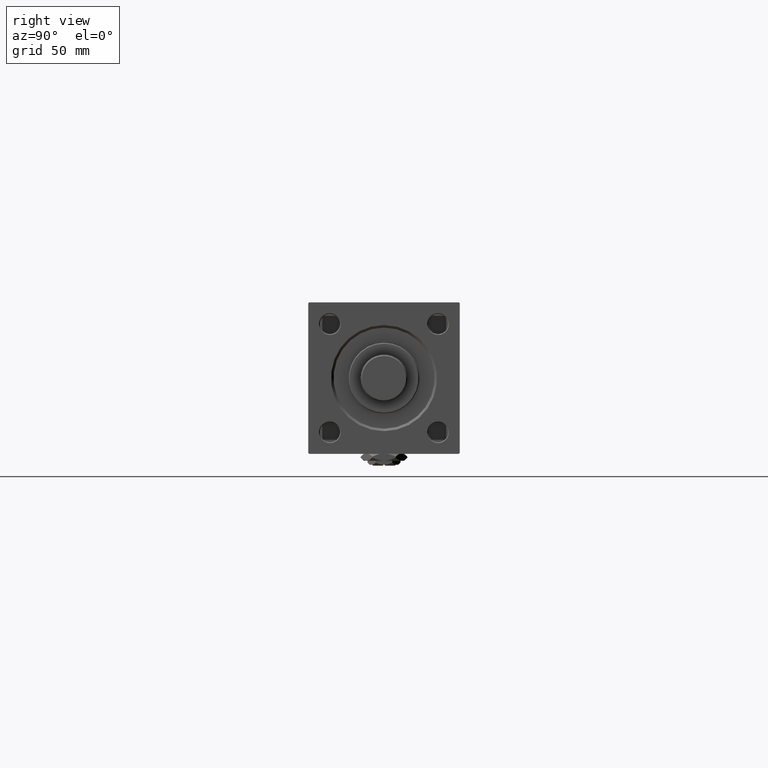
[diagram: clean part render]
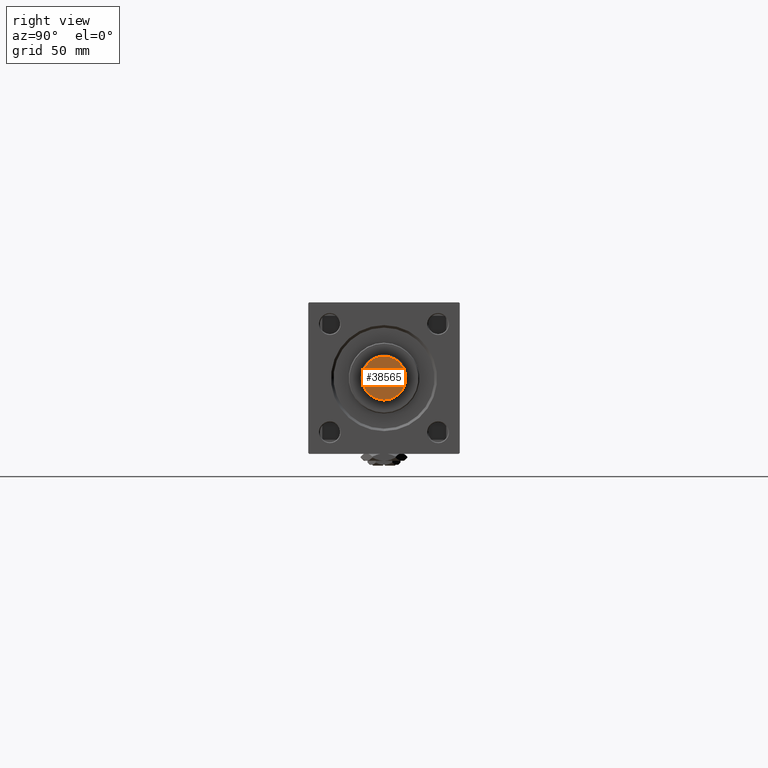
[diagram: same view with one face highlighted and labeled with its STEP entity id]
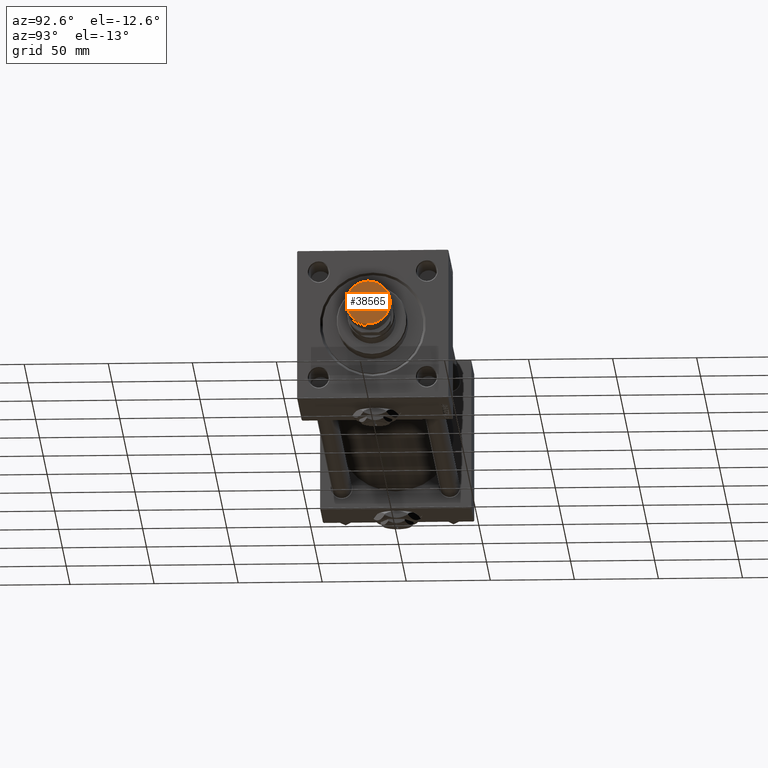
[diagram: same view with one face highlighted and labeled with its STEP entity id]
A machine part, right view. The second image highlights one B-rep face of the part: STEP entity #38565.
A second angle (auxiliary view) of the same face is appended — the face is thin or edge-on in the first view.
In plain terms, the highlighted planar face has unit normal (1, 0, 0).
Its self-contained STEP definition (entity closure, byte-faithful):
#6095 = CIRCLE ( 'NONE', #35055, 13.00000000000000000 ) ;
#6398 = DIRECTION ( 'NONE',  ( 1.000000000000000000, 0.000000000000000000, 0.000000000000000000 ) ) ;
#6473 = AXIS2_PLACEMENT_3D ( 'NONE', #35627, #31878, #48159 ) ;
#7221 = DIRECTION ( 'NONE',  ( 0.000000000000000000, 0.000000000000000000, 1.000000000000000000 ) ) ;
#7640 = CARTESIAN_POINT ( 'NONE',  ( -13.00000000000000000, 1.622657008870242882E-15, 0.000000000000000000 ) ) ;
#11687 = ORIENTED_EDGE ( 'NONE', *, *, #17177, .T. ) ;
#14702 = DIRECTION ( 'NONE',  ( 1.000000000000000000, 0.000000000000000000, 0.000000000000000000 ) ) ;
#17177 = EDGE_CURVE ( 'NONE', #46611, #33141, #26869, .T. ) ;
#24645 = EDGE_CURVE ( 'NONE', #33141, #46611, #6095, .T. ) ;
#26869 = CIRCLE ( 'NONE', #32019, 13.00000000000000000 ) ;
#30430 = DIRECTION ( 'NONE',  ( 0.000000000000000000, 0.000000000000000000, 1.000000000000000000 ) ) ;
#30681 = CARTESIAN_POINT ( 'NONE',  ( 0.000000000000000000, 0.000000000000000000, 0.000000000000000000 ) ) ;
#31878 = DIRECTION ( 'NONE',  ( 0.000000000000000000, 0.000000000000000000, 1.000000000000000000 ) ) ;
#32019 = AXIS2_PLACEMENT_3D ( 'NONE', #30681, #30430, #6398 ) ;
#33141 = VERTEX_POINT ( 'NONE', #36672 ) ;
#34395 = ORIENTED_EDGE ( 'NONE', *, *, #24645, .T. ) ;
#35055 = AXIS2_PLACEMENT_3D ( 'NONE', #38995, #7221, #14702 ) ;
#35627 = CARTESIAN_POINT ( 'NONE',  ( 0.000000000000000000, 0.000000000000000000, 0.000000000000000000 ) ) ;
#36672 = CARTESIAN_POINT ( 'NONE',  ( 13.00000000000000000, 0.000000000000000000, 0.000000000000000000 ) ) ;
#38565 = ADVANCED_FACE ( 'NONE', ( #48678 ), #39618, .T. ) ;
#38995 = CARTESIAN_POINT ( 'NONE',  ( 0.000000000000000000, 0.000000000000000000, 0.000000000000000000 ) ) ;
#39618 = PLANE ( 'NONE',  #6473 ) ;
#46611 = VERTEX_POINT ( 'NONE', #7640 ) ;
#48159 = DIRECTION ( 'NONE',  ( 1.000000000000000000, 0.000000000000000000, -0.000000000000000000 ) ) ;
#48678 = FACE_OUTER_BOUND ( 'NONE', #49721, .T. ) ;
#49721 = EDGE_LOOP ( 'NONE', ( #34395, #11687 ) ) ;